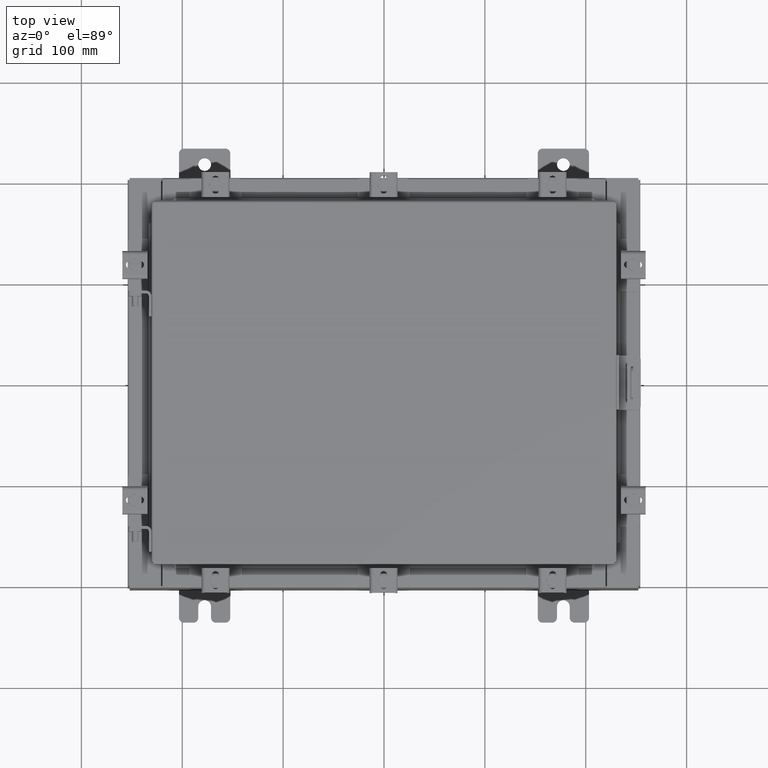
[diagram: clean part render]
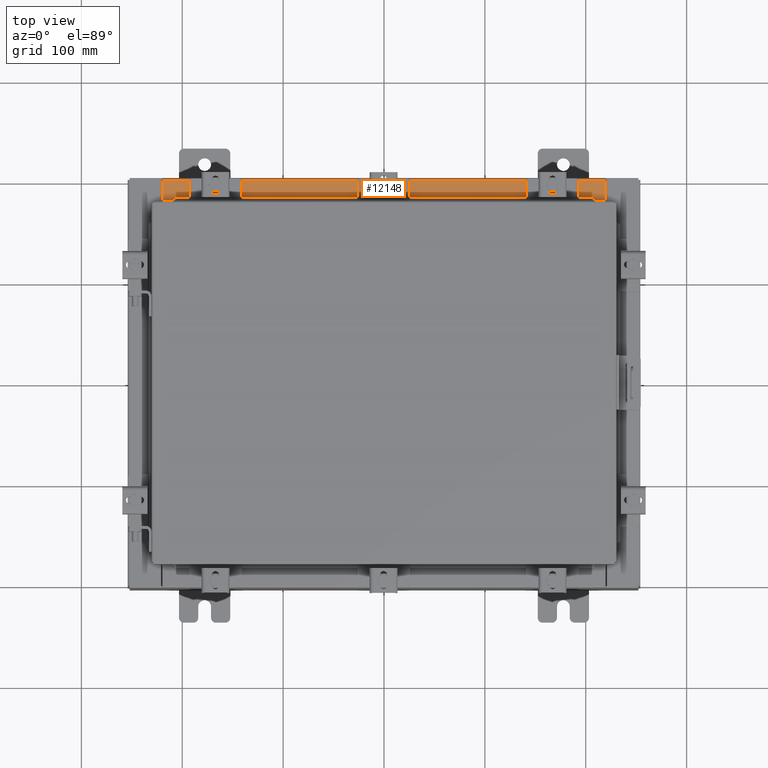
[diagram: same view with one face highlighted and labeled with its STEP entity id]
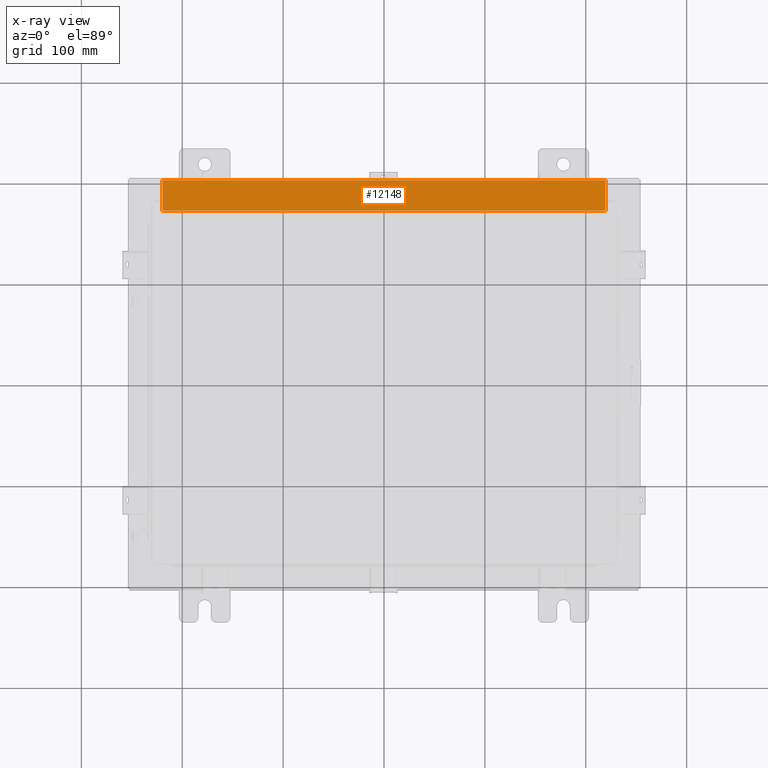
[diagram: x-ray of the same camera — body ghosted, the highlighted face saturated]
A machine part, top view. The second image highlights one B-rep face of the part: STEP entity #12148.
The next image is the same camera in x-ray: the body ghosted, the highlighted face saturated — about 0% of this face is hidden behind the body in this view.
In plain terms, the highlighted planar face has unit normal (0, 0, 1).
Its self-contained STEP definition (entity closure, byte-faithful):
#710 = ORIENTED_EDGE ( 'NONE', *, *, #7020, .F. ) ;
#1604 = CARTESIAN_POINT ( 'NONE',  ( 0.0000000000000000000, 1.069354855923099900E-014, 3.000000000000000900 ) ) ;
#1843 = ORIENTED_EDGE ( 'NONE', *, *, #17190, .F. ) ;
#2200 = EDGE_CURVE ( 'NONE', #14814, #7378, #18912, .T. ) ;
#3157 = DIRECTION ( 'NONE',  ( 0.0000000000000000000, 3.566381192773190000E-015, 1.000000000000000000 ) ) ;
#3576 = DIRECTION ( 'NONE',  ( -0.0000000000000000000, -1.000000000000000000, 3.566381192773190000E-015 ) ) ;
#3832 = VECTOR ( 'NONE', #3576, 39.37007874015748100 ) ;
#4602 = AXIS2_PLACEMENT_3D ( 'NONE', #1604, #3157, #14128 ) ;
#4673 = PLANE ( 'NONE',  #4602 ) ;
#4719 = CARTESIAN_POINT ( 'NONE',  ( 8.637200000000000000, -1.287299999999999900, 3.000000000000005300 ) ) ;
#4928 = EDGE_CURVE ( 'NONE', #18537, #7378, #19216, .T. ) ;
#5638 = FACE_OUTER_BOUND ( 'NONE', #16316, .T. ) ;
#5658 = CARTESIAN_POINT ( 'NONE',  ( -8.637200000000000000, -1.287299999999999200, 3.000000000000005300 ) ) ;
#6294 = CARTESIAN_POINT ( 'NONE',  ( -8.637200000000000000, -0.07469999999999973900, 3.000000000000000900 ) ) ;
#7020 = EDGE_CURVE ( 'NONE', #19927, #18537, #13108, .T. ) ;
#7378 = VERTEX_POINT ( 'NONE', #12685 ) ;
#7810 = ORIENTED_EDGE ( 'NONE', *, *, #2200, .T. ) ;
#8851 = DIRECTION ( 'NONE',  ( -1.000000000000000000, 0.0000000000000000000, 0.0000000000000000000 ) ) ;
#9599 = ORIENTED_EDGE ( 'NONE', *, *, #4928, .F. ) ;
#11405 = DIRECTION ( 'NONE',  ( -1.000000000000000000, 3.162886113166609200E-017, -1.128005754888089100E-031 ) ) ;
#12148 = ADVANCED_FACE ( 'NONE', ( #5638 ), #4673, .T. ) ;
#12685 = CARTESIAN_POINT ( 'NONE',  ( -8.637200000000000000, -0.08770000000000000000, 3.000000000000000900 ) ) ;
#13108 = LINE ( 'NONE', #18299, #17797 ) ;
#14128 = DIRECTION ( 'NONE',  ( 0.0000000000000000000, -1.000000000000000000, 3.566381192773190000E-015 ) ) ;
#14209 = VECTOR ( 'NONE', #11405, 39.37007874015748100 ) ;
#14814 = VERTEX_POINT ( 'NONE', #20025 ) ;
#15003 = VECTOR ( 'NONE', #18871, 39.37007874015748100 ) ;
#16316 = EDGE_LOOP ( 'NONE', ( #9599, #710, #1843, #7810 ) ) ;
#16348 = LINE ( 'NONE', #17722, #3832 ) ;
#17190 = EDGE_CURVE ( 'NONE', #14814, #19927, #16348, .T. ) ;
#17722 = CARTESIAN_POINT ( 'NONE',  ( 8.637200000000000000, -1.300299999999999800, 3.000000000000005300 ) ) ;
#17797 = VECTOR ( 'NONE', #8851, 39.37007874015748100 ) ;
#18299 = CARTESIAN_POINT ( 'NONE',  ( 8.637200000000000000, -1.287299999999999900, 3.000000000000005300 ) ) ;
#18537 = VERTEX_POINT ( 'NONE', #5658 ) ;
#18871 = DIRECTION ( 'NONE',  ( -0.0000000000000000000, 1.000000000000000000, -3.566381192773190000E-015 ) ) ;
#18912 = LINE ( 'NONE', #19332, #14209 ) ;
#19216 = LINE ( 'NONE', #6294, #15003 ) ;
#19332 = CARTESIAN_POINT ( 'NONE',  ( -2.773851121247453900E-018, -0.08770000000000000000, 3.000000000000001300 ) ) ;
#19927 = VERTEX_POINT ( 'NONE', #4719 ) ;
#20025 = CARTESIAN_POINT ( 'NONE',  ( 8.637200000000000000, -0.08769999999999965300, 3.000000000000000900 ) ) ;